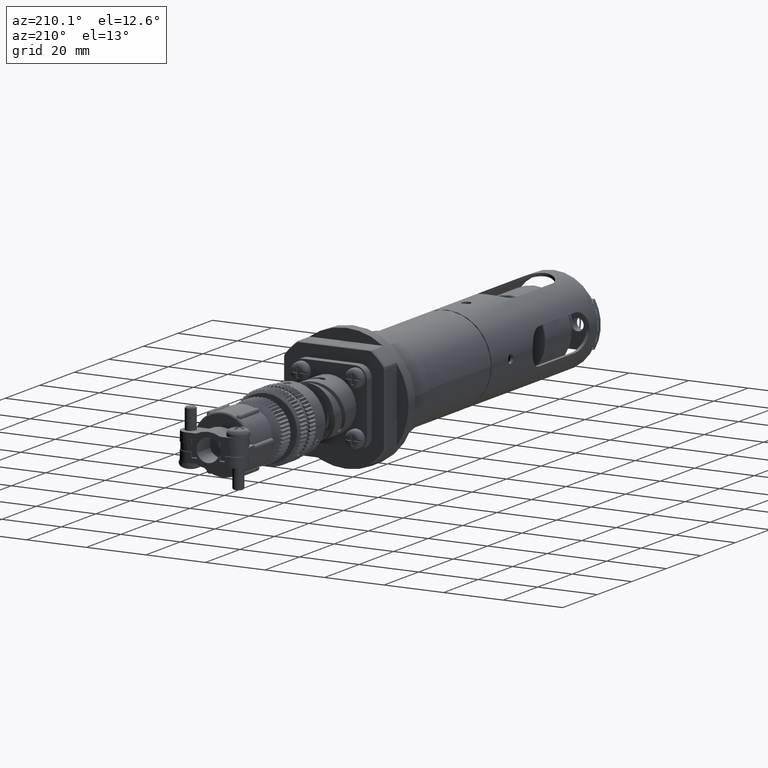
[diagram: clean part render]
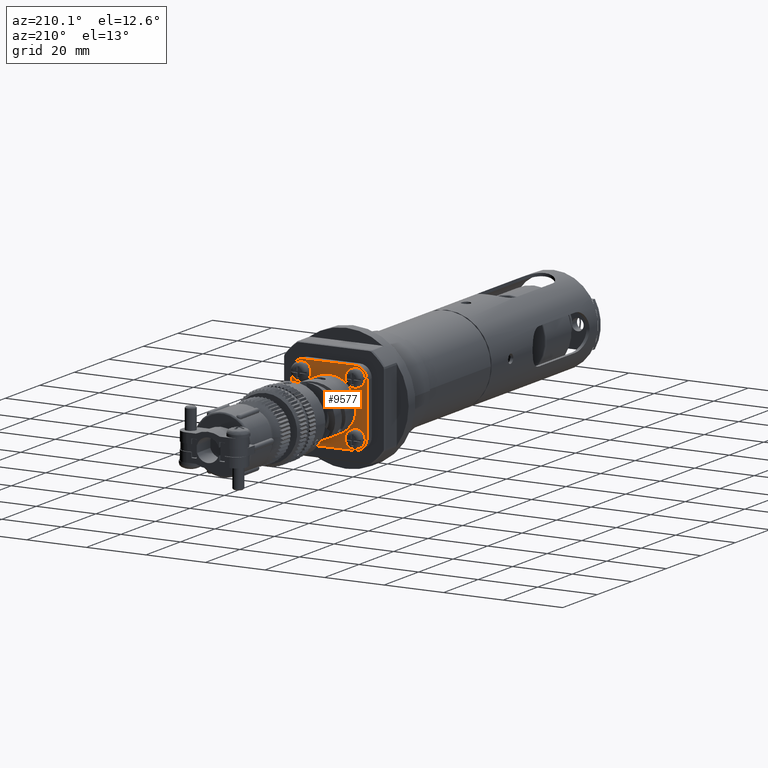
[diagram: same view with one face highlighted and labeled with its STEP entity id]
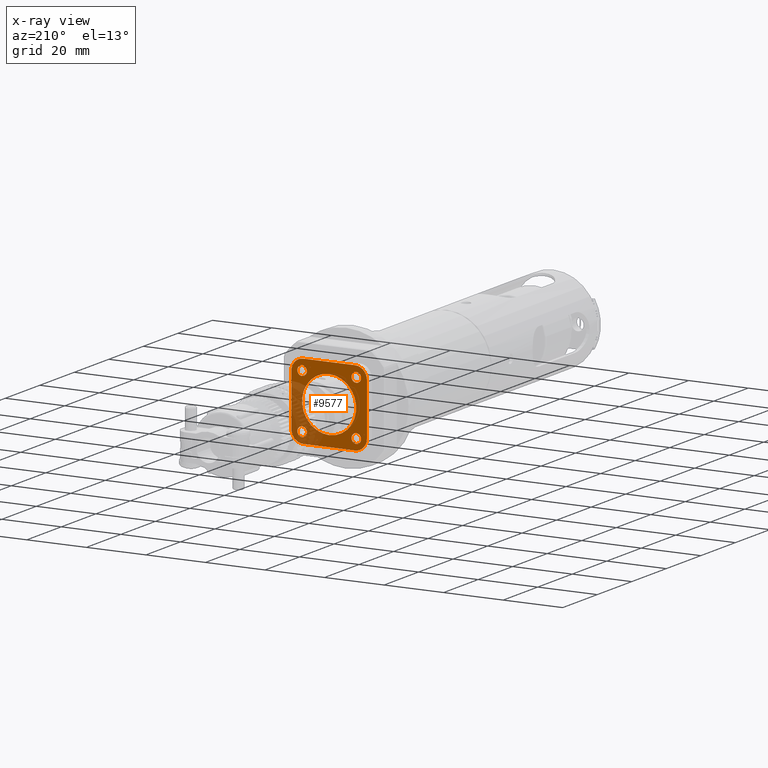
[diagram: x-ray of the same camera — body ghosted, the highlighted face saturated]
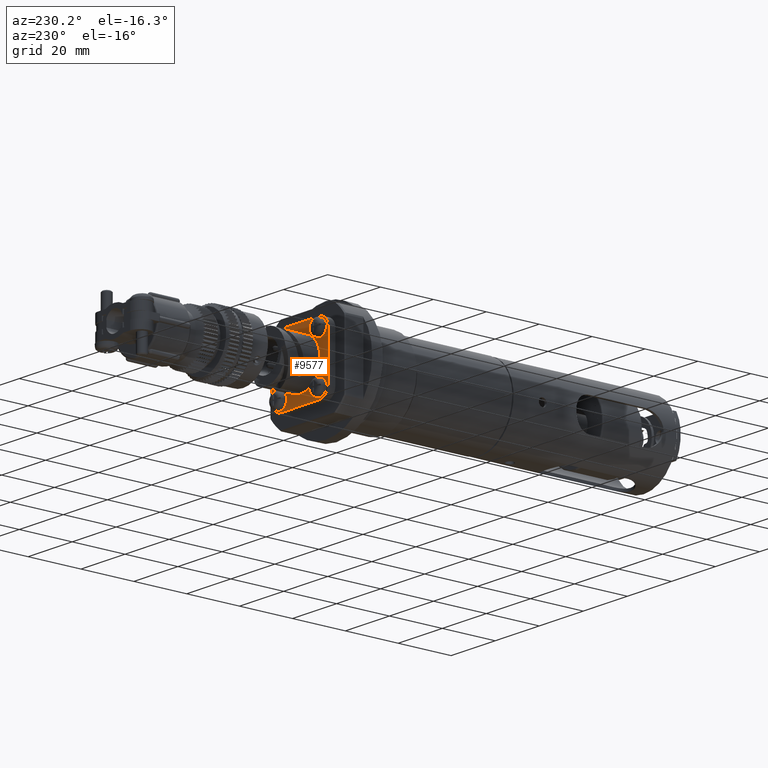
[diagram: same view with one face highlighted and labeled with its STEP entity id]
A machine part, auxiliary view. The second image highlights one B-rep face of the part: STEP entity #9577.
The next image is the same camera in x-ray: the body ghosted, the highlighted face saturated — about 28% of this face is hidden behind the body in this view.
A second angle (auxiliary view) of the same face is appended — the face is thin or edge-on in the first view.
In plain terms, the highlighted planar face has unit normal (0, -1, 0).
Its self-contained STEP definition (entity closure, byte-faithful):
#646 = FACE_BOUND ( 'NONE', #2090, .T. ) ;
#749 = EDGE_LOOP ( 'NONE', ( #30091, #30493, #39223, #51492, #65651, #56392, #28367, #48564 ) ) ;
#986 = DIRECTION ( 'NONE',  ( 0.0000000000000000000, -1.000000000000000000, 0.0000000000000000000 ) ) ;
#1026 = AXIS2_PLACEMENT_3D ( 'NONE', #59454, #42203, #16887 ) ;
#1718 = EDGE_LOOP ( 'NONE', ( #44952, #65669 ) ) ;
#2090 = EDGE_LOOP ( 'NONE', ( #43778, #56334 ) ) ;
#2739 = ORIENTED_EDGE ( 'NONE', *, *, #20879, .F. ) ;
#3163 = CIRCLE ( 'NONE', #59542, 1.600000000000000755 ) ;
#4151 = CARTESIAN_POINT ( 'NONE',  ( 0.0000000000000000000, 13.79999999999999893, 0.0000000000000000000 ) ) ;
#4201 = VERTEX_POINT ( 'NONE', #44105 ) ;
#4487 = CARTESIAN_POINT ( 'NONE',  ( -9.099999999999999645, 13.79999999999999893, -10.70000000000000107 ) ) ;
#4706 = CIRCLE ( 'NONE', #13544, 1.600000000000001643 ) ;
#4803 = EDGE_CURVE ( 'NONE', #20855, #43227, #47538, .T. ) ;
#4922 = EDGE_CURVE ( 'NONE', #26328, #4201, #22283, .T. ) ;
#5647 = VECTOR ( 'NONE', #68120, 1000.000000000000000 ) ;
#6054 = DIRECTION ( 'NONE',  ( 0.0000000000000000000, 1.000000000000000000, -0.0000000000000000000 ) ) ;
#6311 = CARTESIAN_POINT ( 'NONE',  ( 9.099999999999999645, 13.79999999999999893, -10.70000000000000284 ) ) ;
#7809 = CARTESIAN_POINT ( 'NONE',  ( -9.099999999999999645, 13.79999999999999893, -9.099999999999999645 ) ) ;
#7861 = DIRECTION ( 'NONE',  ( 0.0000000000000000000, 0.0000000000000000000, 1.000000000000000000 ) ) ;
#8206 = VERTEX_POINT ( 'NONE', #23206 ) ;
#8398 = VERTEX_POINT ( 'NONE', #38369 ) ;
#8418 = AXIS2_PLACEMENT_3D ( 'NONE', #25511, #45597, #35867 ) ;
#8901 = CARTESIAN_POINT ( 'NONE',  ( -12.69999999999999574, 13.79999999999999893, -8.699999999999970868 ) ) ;
#9120 = VERTEX_POINT ( 'NONE', #41205 ) ;
#9216 = EDGE_CURVE ( 'NONE', #9525, #67588, #25381, .T. ) ;
#9525 = VERTEX_POINT ( 'NONE', #4487 ) ;
#9577 = ADVANCED_FACE ( 'NONE', ( #67434, #36696, #43573, #64965, #16218, #646 ), #22789, .F. ) ;
#10167 = AXIS2_PLACEMENT_3D ( 'NONE', #37223, #6054, #36893 ) ;
#10523 = CIRCLE ( 'NONE', #11590, 1.600000000000002531 ) ;
#10534 = DIRECTION ( 'NONE',  ( 0.0000000000000000000, 1.000000000000000000, 0.0000000000000000000 ) ) ;
#11590 = AXIS2_PLACEMENT_3D ( 'NONE', #19460, #14613, #31220 ) ;
#12001 = CARTESIAN_POINT ( 'NONE',  ( 9.099999999999999645, 13.79999999999999893, 9.099999999999999645 ) ) ;
#12128 = AXIS2_PLACEMENT_3D ( 'NONE', #21765, #986, #43896 ) ;
#12392 = VERTEX_POINT ( 'NONE', #15594 ) ;
#13109 = VECTOR ( 'NONE', #31995, 1000.000000000000000 ) ;
#13530 = CARTESIAN_POINT ( 'NONE',  ( 9.099999999999999645, 13.79999999999999893, -9.099999999999999645 ) ) ;
#13544 = AXIS2_PLACEMENT_3D ( 'NONE', #13530, #34693, #55749 ) ;
#13769 = AXIS2_PLACEMENT_3D ( 'NONE', #12001, #34537, #7861 ) ;
#14613 = DIRECTION ( 'NONE',  ( 0.0000000000000000000, 1.000000000000000000, 0.0000000000000000000 ) ) ;
#15235 = EDGE_CURVE ( 'NONE', #8398, #58727, #49610, .T. ) ;
#15374 = DIRECTION ( 'NONE',  ( 0.0000000000000000000, 0.0000000000000000000, -1.000000000000000000 ) ) ;
#15594 = CARTESIAN_POINT ( 'NONE',  ( -9.099999999999999645, 13.79999999999999893, 7.500000000000000888 ) ) ;
#16218 = FACE_OUTER_BOUND ( 'NONE', #749, .T. ) ;
#16321 = CARTESIAN_POINT ( 'NONE',  ( -8.699999999999995737, 13.79999999999999893, -8.699999999999999289 ) ) ;
#16887 = DIRECTION ( 'NONE',  ( 0.0000000000000000000, 0.0000000000000000000, 1.000000000000000000 ) ) ;
#17290 = DIRECTION ( 'NONE',  ( 0.0000000000000000000, 1.000000000000000000, 0.0000000000000000000 ) ) ;
#17668 = AXIS2_PLACEMENT_3D ( 'NONE', #62118, #10534, #25130 ) ;
#17722 = CARTESIAN_POINT ( 'NONE',  ( 1.114428587224091268E-15, 13.79999999999999893, 9.099999999999999645 ) ) ;
#19460 = CARTESIAN_POINT ( 'NONE',  ( 9.099999999999999645, 13.79999999999999893, 9.099999999999999645 ) ) ;
#20460 = CIRCLE ( 'NONE', #62412, 9.099999999999999645 ) ;
#20564 = DIRECTION ( 'NONE',  ( 0.0000000000000000000, 1.000000000000000000, -0.0000000000000000000 ) ) ;
#20849 = DIRECTION ( 'NONE',  ( 0.0000000000000000000, 1.000000000000000000, -0.0000000000000000000 ) ) ;
#20855 = VERTEX_POINT ( 'NONE', #68169 ) ;
#20879 = EDGE_CURVE ( 'NONE', #12392, #49579, #3163, .T. ) ;
#21765 = CARTESIAN_POINT ( 'NONE',  ( -8.699999999999995737, 13.79999999999999893, 8.699999999999999289 ) ) ;
#21862 = DIRECTION ( 'NONE',  ( 0.0000000000000000000, 0.0000000000000000000, -1.000000000000000000 ) ) ;
#22283 = LINE ( 'NONE', #59309, #13109 ) ;
#22789 = PLANE ( 'NONE',  #12128 ) ;
#23206 = CARTESIAN_POINT ( 'NONE',  ( 8.699999999999974420, 13.79999999999999893, 12.69999999999999574 ) ) ;
#24149 = EDGE_CURVE ( 'NONE', #32617, #64565, #67867, .T. ) ;
#25098 = DIRECTION ( 'NONE',  ( 0.0000000000000000000, 1.000000000000000000, 0.0000000000000000000 ) ) ;
#25130 = DIRECTION ( 'NONE',  ( 0.0000000000000000000, 0.0000000000000000000, 1.000000000000000000 ) ) ;
#25276 = EDGE_CURVE ( 'NONE', #9120, #56481, #20460, .T. ) ;
#25381 = CIRCLE ( 'NONE', #1026, 1.599999999999999867 ) ;
#25417 = AXIS2_PLACEMENT_3D ( 'NONE', #7809, #25098, #30933 ) ;
#25511 = CARTESIAN_POINT ( 'NONE',  ( -8.699999999999995737, 13.79999999999999893, 8.699999999999999289 ) ) ;
#25772 = AXIS2_PLACEMENT_3D ( 'NONE', #16321, #20849, #21862 ) ;
#25885 = EDGE_CURVE ( 'NONE', #60667, #62164, #36022, .T. ) ;
#26207 = ORIENTED_EDGE ( 'NONE', *, *, #9216, .F. ) ;
#26328 = VERTEX_POINT ( 'NONE', #26564 ) ;
#26564 = CARTESIAN_POINT ( 'NONE',  ( 8.699999999999967315, 13.79999999999999893, -12.70000000000000284 ) ) ;
#26683 = AXIS2_PLACEMENT_3D ( 'NONE', #30262, #51356, #46213 ) ;
#26855 = CIRCLE ( 'NONE', #25772, 4.000000000000000000 ) ;
#27745 = ORIENTED_EDGE ( 'NONE', *, *, #55638, .F. ) ;
#28367 = ORIENTED_EDGE ( 'NONE', *, *, #41730, .T. ) ;
#28375 = EDGE_CURVE ( 'NONE', #62164, #8206, #42234, .T. ) ;
#28781 = CARTESIAN_POINT ( 'NONE',  ( 9.099999999999999645, 13.79999999999999893, 7.499999999999999112 ) ) ;
#30091 = ORIENTED_EDGE ( 'NONE', *, *, #25885, .T. ) ;
#30262 = CARTESIAN_POINT ( 'NONE',  ( -9.099999999999999645, 13.79999999999999893, 9.099999999999999645 ) ) ;
#30493 = ORIENTED_EDGE ( 'NONE', *, *, #28375, .T. ) ;
#30933 = DIRECTION ( 'NONE',  ( 0.0000000000000000000, 0.0000000000000000000, 1.000000000000000000 ) ) ;
#31220 = DIRECTION ( 'NONE',  ( 0.0000000000000000000, 0.0000000000000000000, 1.000000000000000000 ) ) ;
#31995 = DIRECTION ( 'NONE',  ( -1.000000000000000000, -0.0000000000000000000, 1.993935029858406292E-16 ) ) ;
#32617 = VERTEX_POINT ( 'NONE', #28781 ) ;
#32952 = CARTESIAN_POINT ( 'NONE',  ( 0.0000000000000000000, 13.79999999999999893, 0.0000000000000000000 ) ) ;
#34537 = DIRECTION ( 'NONE',  ( 0.0000000000000000000, 1.000000000000000000, 0.0000000000000000000 ) ) ;
#34693 = DIRECTION ( 'NONE',  ( 0.0000000000000000000, 1.000000000000000000, 0.0000000000000000000 ) ) ;
#35867 = DIRECTION ( 'NONE',  ( 0.0000000000000000000, 0.0000000000000000000, -1.000000000000000000 ) ) ;
#36006 = CARTESIAN_POINT ( 'NONE',  ( -8.699999999999967315, 13.79999999999999893, 12.69999999999999929 ) ) ;
#36022 = CIRCLE ( 'NONE', #8418, 4.000000000000000000 ) ;
#36696 = FACE_BOUND ( 'NONE', #64841, .T. ) ;
#36893 = DIRECTION ( 'NONE',  ( 0.0000000000000000000, 0.0000000000000000000, -1.000000000000000000 ) ) ;
#37223 = CARTESIAN_POINT ( 'NONE',  ( 8.699999999999995737, 13.79999999999999893, -8.700000000000002842 ) ) ;
#37770 = CIRCLE ( 'NONE', #52071, 9.099999999999999645 ) ;
#38228 = DIRECTION ( 'NONE',  ( -1.993935029858405553E-16, -0.0000000000000000000, -1.000000000000000000 ) ) ;
#38369 = CARTESIAN_POINT ( 'NONE',  ( 12.70000000000000284, 13.79999999999999893, 8.699999999999967315 ) ) ;
#39054 = AXIS2_PLACEMENT_3D ( 'NONE', #67916, #20564, #15374 ) ;
#39223 = ORIENTED_EDGE ( 'NONE', *, *, #66162, .T. ) ;
#40038 = CIRCLE ( 'NONE', #10167, 4.000000000000000000 ) ;
#40873 = DIRECTION ( 'NONE',  ( 0.0000000000000000000, 0.0000000000000000000, -1.000000000000000000 ) ) ;
#41205 = CARTESIAN_POINT ( 'NONE',  ( 0.0000000000000000000, 13.79999999999999893, -9.099999999999999645 ) ) ;
#41405 = DIRECTION ( 'NONE',  ( 0.0000000000000000000, 0.0000000000000000000, 1.000000000000000000 ) ) ;
#41730 = EDGE_CURVE ( 'NONE', #4201, #63916, #26855, .T. ) ;
#42203 = DIRECTION ( 'NONE',  ( 0.0000000000000000000, 1.000000000000000000, 0.0000000000000000000 ) ) ;
#42234 = LINE ( 'NONE', #36006, #5647 ) ;
#42264 = EDGE_CURVE ( 'NONE', #58727, #26328, #40038, .T. ) ;
#43227 = VERTEX_POINT ( 'NONE', #6311 ) ;
#43228 = CIRCLE ( 'NONE', #26683, 1.600000000000000755 ) ;
#43573 = FACE_BOUND ( 'NONE', #1718, .T. ) ;
#43778 = ORIENTED_EDGE ( 'NONE', *, *, #25276, .F. ) ;
#43896 = DIRECTION ( 'NONE',  ( 0.0000000000000000000, -0.0000000000000000000, -1.000000000000000000 ) ) ;
#44105 = CARTESIAN_POINT ( 'NONE',  ( -8.699999999999967315, 13.79999999999999893, -12.69999999999999929 ) ) ;
#44358 = DIRECTION ( 'NONE',  ( 0.0000000000000000000, 1.000000000000000000, -0.0000000000000000000 ) ) ;
#44952 = ORIENTED_EDGE ( 'NONE', *, *, #51629, .F. ) ;
#45597 = DIRECTION ( 'NONE',  ( 0.0000000000000000000, 1.000000000000000000, -0.0000000000000000000 ) ) ;
#46213 = DIRECTION ( 'NONE',  ( 0.0000000000000000000, 0.0000000000000000000, 1.000000000000000000 ) ) ;
#46266 = LINE ( 'NONE', #8901, #54601 ) ;
#46710 = CARTESIAN_POINT ( 'NONE',  ( 9.099999999999999645, 13.79999999999999893, 10.70000000000000284 ) ) ;
#47538 = CIRCLE ( 'NONE', #17668, 1.600000000000001643 ) ;
#47734 = CARTESIAN_POINT ( 'NONE',  ( 12.69999999999999751, 13.79999999999999893, -8.699999999999974420 ) ) ;
#47850 = EDGE_CURVE ( 'NONE', #56481, #9120, #37770, .T. ) ;
#48302 = CARTESIAN_POINT ( 'NONE',  ( -12.69999999999999574, 13.79999999999999893, 8.699999999999970868 ) ) ;
#48564 = ORIENTED_EDGE ( 'NONE', *, *, #50476, .T. ) ;
#48601 = CIRCLE ( 'NONE', #25417, 1.599999999999999867 ) ;
#49579 = VERTEX_POINT ( 'NONE', #51648 ) ;
#49610 = LINE ( 'NONE', #55128, #58269 ) ;
#49906 = EDGE_CURVE ( 'NONE', #43227, #20855, #4706, .T. ) ;
#50399 = ORIENTED_EDGE ( 'NONE', *, *, #54641, .F. ) ;
#50476 = EDGE_CURVE ( 'NONE', #63916, #60667, #46266, .T. ) ;
#51154 = CIRCLE ( 'NONE', #39054, 3.999999999999999112 ) ;
#51271 = EDGE_LOOP ( 'NONE', ( #50399, #26207 ) ) ;
#51356 = DIRECTION ( 'NONE',  ( 0.0000000000000000000, 1.000000000000000000, 0.0000000000000000000 ) ) ;
#51492 = ORIENTED_EDGE ( 'NONE', *, *, #15235, .T. ) ;
#51629 = EDGE_CURVE ( 'NONE', #64565, #32617, #10523, .T. ) ;
#51648 = CARTESIAN_POINT ( 'NONE',  ( -9.099999999999999645, 13.79999999999999893, 10.70000000000000107 ) ) ;
#52071 = AXIS2_PLACEMENT_3D ( 'NONE', #4151, #67095, #40873 ) ;
#53642 = DIRECTION ( 'NONE',  ( 0.0000000000000000000, 0.0000000000000000000, 1.000000000000000000 ) ) ;
#54601 = VECTOR ( 'NONE', #41405, 1000.000000000000000 ) ;
#54641 = EDGE_CURVE ( 'NONE', #67588, #9525, #48601, .T. ) ;
#55128 = CARTESIAN_POINT ( 'NONE',  ( 12.69999999999999751, 13.79999999999999893, -8.699999999999974420 ) ) ;
#55215 = CARTESIAN_POINT ( 'NONE',  ( -12.69999999999999574, 13.79999999999999893, -8.699999999999969091 ) ) ;
#55638 = EDGE_CURVE ( 'NONE', #49579, #12392, #43228, .T. ) ;
#55701 = CARTESIAN_POINT ( 'NONE',  ( -9.099999999999999645, 13.79999999999999893, -7.500000000000000888 ) ) ;
#55749 = DIRECTION ( 'NONE',  ( 0.0000000000000000000, 0.0000000000000000000, 1.000000000000000000 ) ) ;
#56334 = ORIENTED_EDGE ( 'NONE', *, *, #47850, .F. ) ;
#56392 = ORIENTED_EDGE ( 'NONE', *, *, #4922, .T. ) ;
#56481 = VERTEX_POINT ( 'NONE', #17722 ) ;
#58133 = EDGE_LOOP ( 'NONE', ( #64740, #63820 ) ) ;
#58269 = VECTOR ( 'NONE', #38228, 1000.000000000000000 ) ;
#58727 = VERTEX_POINT ( 'NONE', #47734 ) ;
#59309 = CARTESIAN_POINT ( 'NONE',  ( -8.699999999999967315, 13.79999999999999893, -12.69999999999999929 ) ) ;
#59454 = CARTESIAN_POINT ( 'NONE',  ( -9.099999999999999645, 13.79999999999999893, -9.099999999999999645 ) ) ;
#59542 = AXIS2_PLACEMENT_3D ( 'NONE', #60219, #17290, #53642 ) ;
#60219 = CARTESIAN_POINT ( 'NONE',  ( -9.099999999999999645, 13.79999999999999893, 9.099999999999999645 ) ) ;
#60667 = VERTEX_POINT ( 'NONE', #48302 ) ;
#62118 = CARTESIAN_POINT ( 'NONE',  ( 9.099999999999999645, 13.79999999999999893, -9.099999999999999645 ) ) ;
#62164 = VERTEX_POINT ( 'NONE', #66853 ) ;
#62412 = AXIS2_PLACEMENT_3D ( 'NONE', #32952, #44358, #66772 ) ;
#63820 = ORIENTED_EDGE ( 'NONE', *, *, #49906, .F. ) ;
#63916 = VERTEX_POINT ( 'NONE', #55215 ) ;
#64565 = VERTEX_POINT ( 'NONE', #46710 ) ;
#64740 = ORIENTED_EDGE ( 'NONE', *, *, #4803, .F. ) ;
#64841 = EDGE_LOOP ( 'NONE', ( #27745, #2739 ) ) ;
#64965 = FACE_BOUND ( 'NONE', #58133, .T. ) ;
#65651 = ORIENTED_EDGE ( 'NONE', *, *, #42264, .T. ) ;
#65669 = ORIENTED_EDGE ( 'NONE', *, *, #24149, .F. ) ;
#66162 = EDGE_CURVE ( 'NONE', #8206, #8398, #51154, .T. ) ;
#66772 = DIRECTION ( 'NONE',  ( 0.0000000000000000000, 0.0000000000000000000, -1.000000000000000000 ) ) ;
#66853 = CARTESIAN_POINT ( 'NONE',  ( -8.699999999999967315, 13.79999999999999893, 12.69999999999999929 ) ) ;
#67095 = DIRECTION ( 'NONE',  ( 0.0000000000000000000, 1.000000000000000000, -0.0000000000000000000 ) ) ;
#67434 = FACE_BOUND ( 'NONE', #51271, .T. ) ;
#67588 = VERTEX_POINT ( 'NONE', #55701 ) ;
#67867 = CIRCLE ( 'NONE', #13769, 1.600000000000002531 ) ;
#67916 = CARTESIAN_POINT ( 'NONE',  ( 8.700000000000002842, 13.79999999999999893, 8.699999999999995737 ) ) ;
#68120 = DIRECTION ( 'NONE',  ( 1.000000000000000000, 0.0000000000000000000, -1.993935029858405553E-16 ) ) ;
#68169 = CARTESIAN_POINT ( 'NONE',  ( 9.099999999999999645, 13.79999999999999893, -7.499999999999999112 ) ) ;